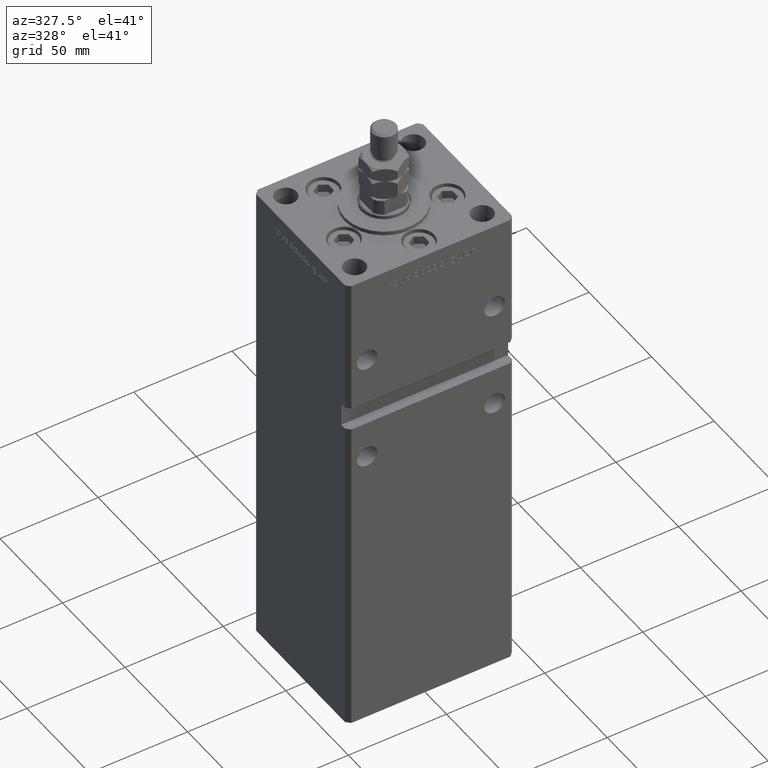
[diagram: clean part render]
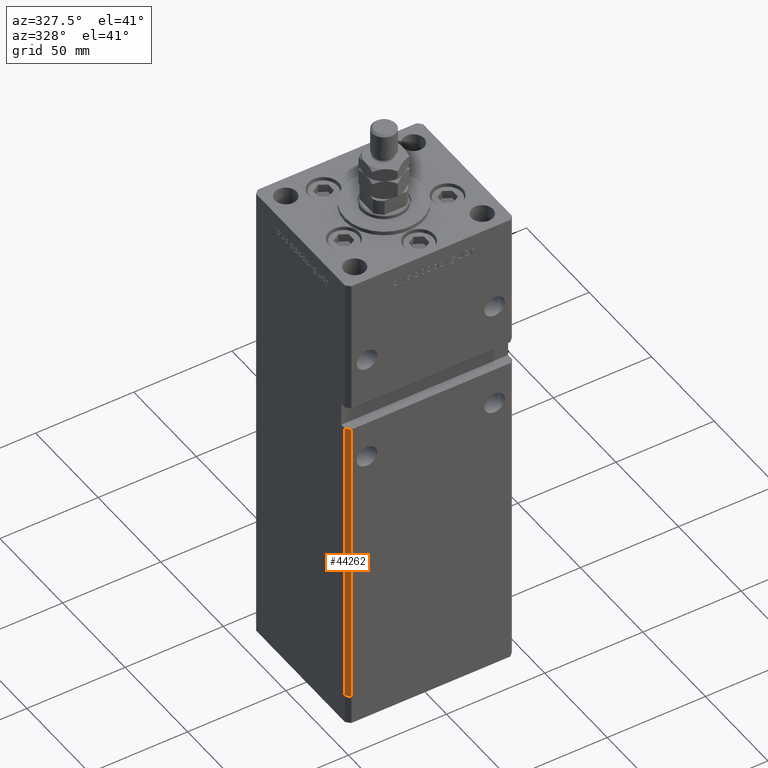
[diagram: same view with one face highlighted and labeled with its STEP entity id]
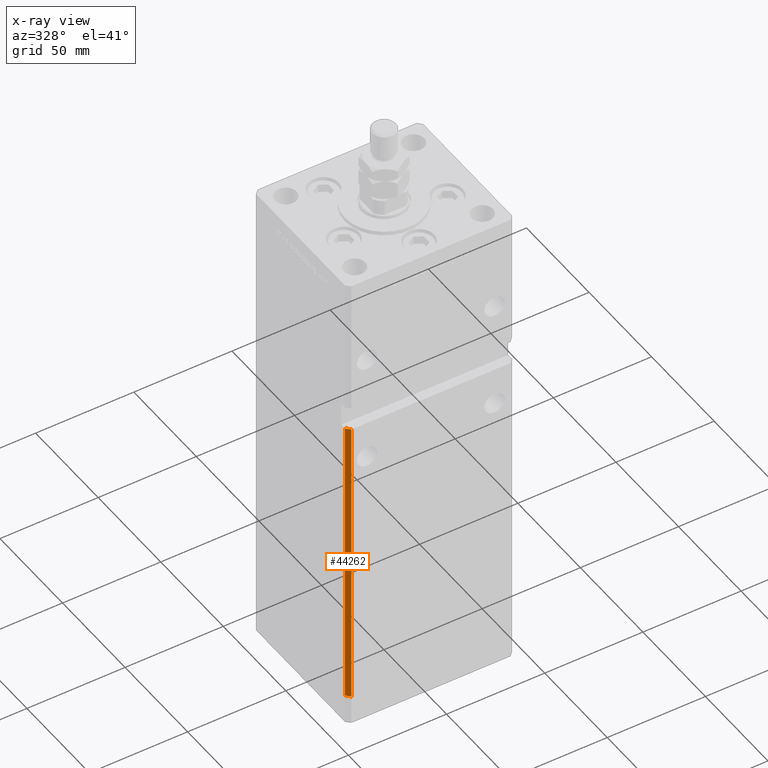
[diagram: x-ray of the same camera — body ghosted, the highlighted face saturated]
A machine part, auxiliary view. The second image highlights one B-rep face of the part: STEP entity #44262.
The next image is the same camera in x-ray: the body ghosted, the highlighted face saturated — about 0% of this face is hidden behind the body in this view.
In plain terms, the highlighted planar face has unit normal (0.7071, 0.7071, 0).
Its self-contained STEP definition (entity closure, byte-faithful):
#3806 = DIRECTION ( 'NONE',  ( 0.7071067811865475727, 0.7071067811865475727, -0.000000000000000000 ) ) ;
#4228 = VECTOR ( 'NONE', #31144, 1000.000000000000114 ) ;
#7860 = ORIENTED_EDGE ( 'NONE', *, *, #49445, .T. ) ;
#11829 = CARTESIAN_POINT ( 'NONE',  ( -42.49999999999998579, -35.50000000000000711, 218.5000000000000000 ) ) ;
#13676 = CARTESIAN_POINT ( 'NONE',  ( -42.49999999999998579, -35.49999999999996447, 152.0000000000000284 ) ) ;
#13852 = VECTOR ( 'NONE', #40419, 1000.000000000000114 ) ;
#14995 = CARTESIAN_POINT ( 'NONE',  ( -42.49999999999998579, -35.50000000000000711, 152.0000000000000284 ) ) ;
#19185 = VERTEX_POINT ( 'NONE', #24097 ) ;
#19601 = ORIENTED_EDGE ( 'NONE', *, *, #31256, .T. ) ;
#20829 = ORIENTED_EDGE ( 'NONE', *, *, #46638, .F. ) ;
#22019 = CARTESIAN_POINT ( 'NONE',  ( -42.49999999999998579, -35.50000000000000711, 218.5000000000000000 ) ) ;
#22729 = LINE ( 'NONE', #14995, #13852 ) ;
#23051 = AXIS2_PLACEMENT_3D ( 'NONE', #11829, #3806, #54413 ) ;
#24097 = CARTESIAN_POINT ( 'NONE',  ( -40.49999999999998579, -37.50000000000000711, 0.000000000000000000 ) ) ;
#26842 = LINE ( 'NONE', #52032, #52285 ) ;
#27643 = EDGE_CURVE ( 'NONE', #52888, #35510, #22729, .T. ) ;
#28731 = VERTEX_POINT ( 'NONE', #54056 ) ;
#29860 = CARTESIAN_POINT ( 'NONE',  ( -42.49999999999998579, -35.50000000000000711, 0.000000000000000000 ) ) ;
#31053 = VECTOR ( 'NONE', #38862, 1000.000000000000000 ) ;
#31144 = DIRECTION ( 'NONE',  ( 0.7071067811865474617, -0.7071067811865474617, 0.000000000000000000 ) ) ;
#31256 = EDGE_CURVE ( 'NONE', #28731, #19185, #39156, .T. ) ;
#32835 = FACE_OUTER_BOUND ( 'NONE', #48624, .T. ) ;
#35510 = VERTEX_POINT ( 'NONE', #13676 ) ;
#38862 = DIRECTION ( 'NONE',  ( -0.000000000000000000, -0.000000000000000000, -1.000000000000000000 ) ) ;
#39156 = LINE ( 'NONE', #29860, #4228 ) ;
#40419 = DIRECTION ( 'NONE',  ( -0.7071067811865474617, 0.7071067811865474617, 0.000000000000000000 ) ) ;
#41141 = CARTESIAN_POINT ( 'NONE',  ( -40.49999999999998579, -37.50000000000000711, 152.0000000000000284 ) ) ;
#41694 = PLANE ( 'NONE',  #23051 ) ;
#44262 = ADVANCED_FACE ( 'NONE', ( #32835 ), #41694, .F. ) ;
#46638 = EDGE_CURVE ( 'NONE', #52888, #19185, #26842, .T. ) ;
#48624 = EDGE_LOOP ( 'NONE', ( #20829, #53429, #7860, #19601 ) ) ;
#49445 = EDGE_CURVE ( 'NONE', #35510, #28731, #51881, .T. ) ;
#51881 = LINE ( 'NONE', #22019, #31053 ) ;
#52032 = CARTESIAN_POINT ( 'NONE',  ( -40.49999999999998579, -37.50000000000000711, 218.5000000000000000 ) ) ;
#52285 = VECTOR ( 'NONE', #52299, 1000.000000000000000 ) ;
#52299 = DIRECTION ( 'NONE',  ( -0.000000000000000000, -0.000000000000000000, -1.000000000000000000 ) ) ;
#52888 = VERTEX_POINT ( 'NONE', #41141 ) ;
#53429 = ORIENTED_EDGE ( 'NONE', *, *, #27643, .T. ) ;
#54056 = CARTESIAN_POINT ( 'NONE',  ( -42.49999999999998579, -35.50000000000000711, 0.000000000000000000 ) ) ;
#54413 = DIRECTION ( 'NONE',  ( -0.7071067811865474617, 0.7071067811865474617, 0.000000000000000000 ) ) ;